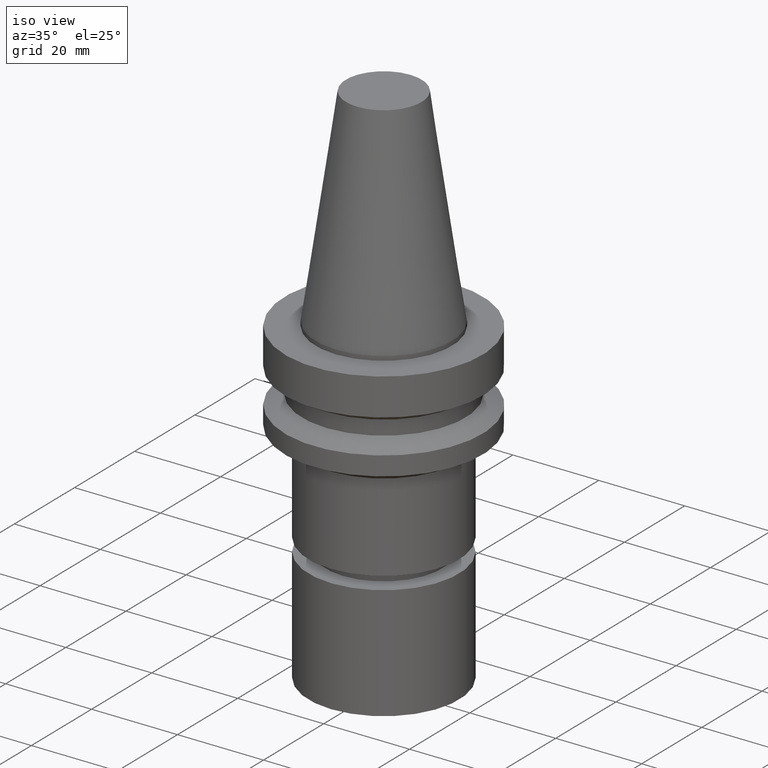
[diagram: clean part render]
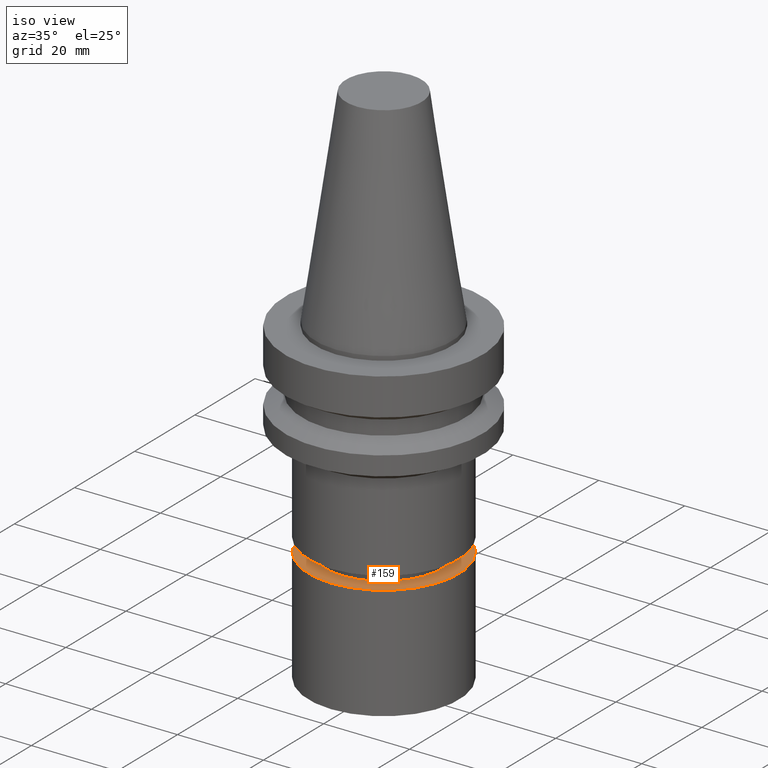
[diagram: same view with one face highlighted and labeled with its STEP entity id]
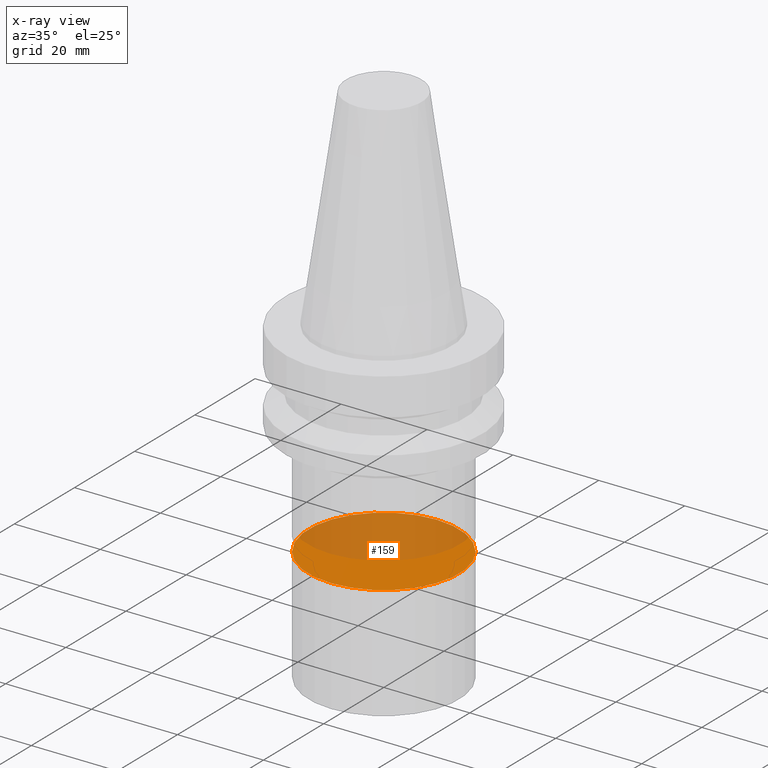
[diagram: x-ray of the same camera — body ghosted, the highlighted face saturated]
A machine part, iso view. The second image highlights one B-rep face of the part: STEP entity #159.
The next image is the same camera in x-ray: the body ghosted, the highlighted face saturated — about 53% of this face is hidden behind the body in this view.
In plain terms, the highlighted planar face has unit normal (-0, -0, 1).
Its self-contained STEP definition (entity closure, byte-faithful):
#159=ADVANCED_FACE('Unnamed[1]',(#333),#334,.T.);
#166=EDGE_CURVE('Unnamed[1]',#342,#342,#343,.T.);
#333=FACE_OUTER_BOUND('',#542,.T.);
#334=PLANE('',#543);
#342=VERTEX_POINT('',#553);
#343=CIRCLE('',#554,17.5);
#542=EDGE_LOOP('',(#729));
#543=AXIS2_PLACEMENT_3D('',#730,#731,#732);
#553=CARTESIAN_POINT('',(2.96976942226369E-015,17.5,-48.5000152587891));
#554=AXIS2_PLACEMENT_3D('',#737,#738,#739);
#729=ORIENTED_EDGE('',*,*,#166,.F.);
#730=CARTESIAN_POINT('',(2.96976942226369E-015,8.75000000000001,-48.5000152587891));
#731=DIRECTION('',(-6.12323399573677E-017,-1.22464679914735E-016,1.0));
#732=DIRECTION('',(1.23259516440783E-032,-1.0,-1.22464679914735E-016));
#737=CARTESIAN_POINT('',(2.96976942226369E-015,5.93953884452738E-015,-48.5000152587891));
#738=DIRECTION('',(6.12323399573677E-017,1.22464679914735E-016,-1.0));
#739=DIRECTION('',(-1.23259516440783E-032,1.0,1.22464679914735E-016));